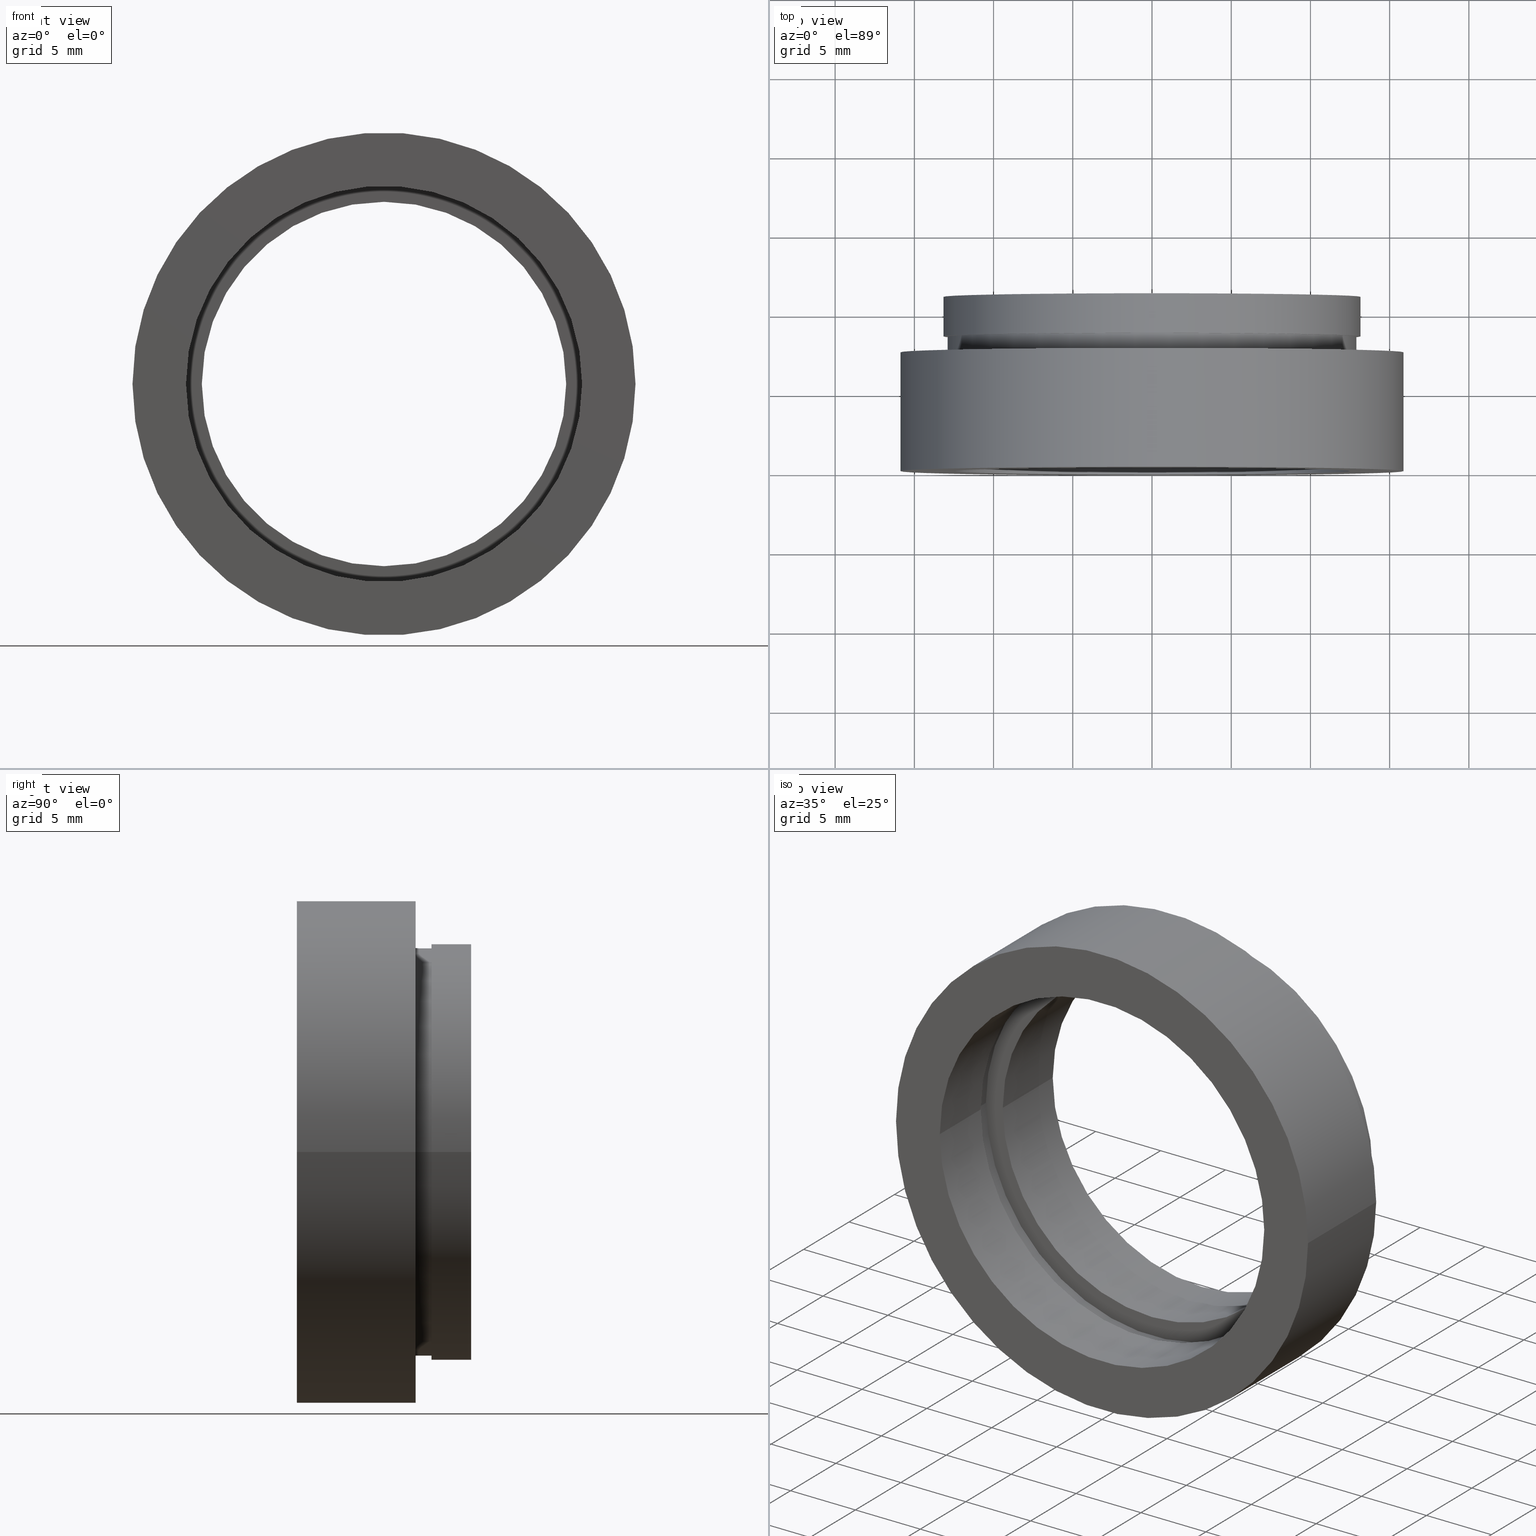
[diagram: canonical four-view strip — front | top / right | iso, engineering-drawing reading convention]
A machine part, canonical four-view strip (front | top / right | iso — engineering-drawing reading convention). The complete STEP part file that produces these views, byte-faithful:
ISO-10303-21;
HEADER;
FILE_DESCRIPTION (( 'STEP AP214' ),
    '1' );
FILE_NAME ('504116.STEP',
    '2019-10-10T01:22:41',
    ( '' ),
    ( '' ),
    'SwSTEP 2.0',
    'SolidWorks 2016',
    '' );
FILE_SCHEMA (( 'AUTOMOTIVE_DESIGN' ));
ENDSEC;

DATA;
#1 =( NAMED_UNIT ( * ) PLANE_ANGLE_UNIT ( ) SI_UNIT ( $, .RADIAN. ) );
#2 = LINE ( 'NONE', #86, #373 ) ;
#3 = EDGE_CURVE ( 'NONE', #23, #424, #531, .T. ) ;
#4 = FILL_AREA_STYLE ('',( #107 ) ) ;
#5 = EDGE_LOOP ( 'NONE', ( #394, #592, #94, #218 ) ) ;
#6 = DIRECTION ( 'NONE',  ( -1.224646799147351000E-016, 1.000000000000000000, -0.0000000000000000000 ) ) ;
#7 = EDGE_CURVE ( 'NONE', #517, #200, #553, .T. ) ;
#8 = FILL_AREA_STYLE_COLOUR ( '', #286 ) ;
#9 = AXIS2_PLACEMENT_3D ( 'NONE', #231, #101, #377 ) ;
#10 = CARTESIAN_POINT ( 'NONE',  ( 1.516849758822328100E-015, 4.499999999999999100, 0.0000000000000000000 ) ) ;
#11 = EDGE_LOOP ( 'NONE', ( #310, #124, #113, #156 ) ) ;
#12 = FACE_OUTER_BOUND ( 'NONE', #59, .T. ) ;
#13 = EDGE_LOOP ( 'NONE', ( #523, #241, #400, #397 ) ) ;
#14 = EDGE_CURVE ( 'NONE', #468, #275, #129, .T. ) ;
#15 = SURFACE_STYLE_FILL_AREA ( #313 ) ;
#16 = CARTESIAN_POINT ( 'NONE',  ( -12.89999999999999900, 7.499999999999996400, 0.0000000000000000000 ) ) ;
#17 = DIRECTION ( 'NONE',  ( -1.224646799147351000E-016, 1.000000000000000000, -0.0000000000000000000 ) ) ;
#18 = VECTOR ( 'NONE', #560, 1000.000000000000000 ) ;
#19 = CARTESIAN_POINT ( 'NONE',  ( 0.0000000000000000000, 16.88601823708207700, 0.0000000000000000000 ) ) ;
#20 = DIRECTION ( 'NONE',  ( -1.224646799147351000E-016, 1.000000000000000000, 0.0000000000000000000 ) ) ;
#21 = UNCERTAINTY_MEASURE_WITH_UNIT (LENGTH_MEASURE( 1.000000000000000100E-005 ), #212, 'distance_accuracy_value', 'NONE');
#22 = MECHANICAL_DESIGN_GEOMETRIC_PRESENTATION_REPRESENTATION (  '', ( #122 ), #108 ) ;
#23 = VERTEX_POINT ( 'NONE', #60 ) ;
#24 = CARTESIAN_POINT ( 'NONE',  ( 11.50000000000000200, 5.500000000000000000, 1.408343819019456600E-015 ) ) ;
#25 = DIRECTION ( 'NONE',  ( -1.000000000000000000, -1.508455196501571400E-016, 0.0000000000000000000 ) ) ;
#26 = CARTESIAN_POINT ( 'NONE',  ( 1.026991039163387700E-015, 8.499999999999998200, 0.0000000000000000000 ) ) ;
#27 = MECHANICAL_DESIGN_GEOMETRIC_PRESENTATION_REPRESENTATION (  '', ( #417 ), #309 ) ;
#28 = VECTOR ( 'NONE', #461, 1000.000000000000000 ) ;
#29 = CARTESIAN_POINT ( 'NONE',  ( 1.149455719078122700E-015, 7.499999999999998200, 0.0000000000000000000 ) ) ;
#30 = CARTESIAN_POINT ( 'NONE',  ( 1.516849758822328100E-015, 4.499999999999999100, 0.0000000000000000000 ) ) ;
#31 = SURFACE_STYLE_USAGE ( .BOTH. , #187 ) ;
#32 = EDGE_CURVE ( 'NONE', #53, #204, #568, .T. ) ;
#33 = UNCERTAINTY_MEASURE_WITH_UNIT (LENGTH_MEASURE( 1.000000000000000100E-005 ), #239, 'distance_accuracy_value', 'NONE');
#34 = ORIENTED_EDGE ( 'NONE', *, *, #253, .T. ) ;
#35 = FACE_BOUND ( 'NONE', #490, .T. ) ;
#36 = FILL_AREA_STYLE ('',( #91 ) ) ;
#37 = ADVANCED_FACE ( 'NONE', ( #63, #395 ), #155, .F. ) ;
#38 = CIRCLE ( 'NONE', #445, 15.87499999999999600 ) ;
#39 = CARTESIAN_POINT ( 'NONE',  ( 0.0000000000000000000, 16.88601823708207700, 0.0000000000000000000 ) ) ;
#40 = ORIENTED_EDGE ( 'NONE', *, *, #618, .T. ) ;
#41 = FACE_OUTER_BOUND ( 'NONE', #478, .T. ) ;
#42 = CARTESIAN_POINT ( 'NONE',  ( 1.149455719078122700E-015, 7.499999999999998200, 0.0000000000000000000 ) ) ;
#43 =( GEOMETRIC_REPRESENTATION_CONTEXT ( 3 ) GLOBAL_UNCERTAINTY_ASSIGNED_CONTEXT ( ( #208 ) ) GLOBAL_UNIT_ASSIGNED_CONTEXT ( ( #452, #496, #213 ) ) REPRESENTATION_CONTEXT ( 'NONE', 'WORKASPACE' ) );
#44 = DIRECTION ( 'NONE',  ( -1.000000000000000000, -1.355252715606880500E-016, 0.0000000000000000000 ) ) ;
#45 = ORIENTED_EDGE ( 'NONE', *, *, #144, .T. ) ;
#46 = EDGE_CURVE ( 'NONE', #254, #23, #177, .T. ) ;
#47 = CARTESIAN_POINT ( 'NONE',  ( 1.516849758822328100E-015, 4.499999999999999100, 0.0000000000000000000 ) ) ;
#48 = SURFACE_STYLE_FILL_AREA ( #255 ) ;
#49 = FACE_OUTER_BOUND ( 'NONE', #511, .T. ) ;
#50 =( GEOMETRIC_REPRESENTATION_CONTEXT ( 3 ) GLOBAL_UNCERTAINTY_ASSIGNED_CONTEXT ( ( #387 ) ) GLOBAL_UNIT_ASSIGNED_CONTEXT ( ( #322, #561, #328 ) ) REPRESENTATION_CONTEXT ( 'NONE', 'WORKASPACE' ) );
#51 = SURFACE_SIDE_STYLE ('',( #109 ) ) ;
#52 = CIRCLE ( 'NONE', #324, 12.80000000000000100 ) ;
#53 = VERTEX_POINT ( 'NONE', #396 ) ;
#54 = CYLINDRICAL_SURFACE ( 'NONE', #423, 15.87500000000000000 ) ;
#55 = CARTESIAN_POINT ( 'NONE',  ( 2.067940818438636500E-015, -3.469446951953614200E-015, 0.0000000000000000000 ) ) ;
#56 = VECTOR ( 'NONE', #183, 1000.000000000000000 ) ;
#57 = EDGE_CURVE ( 'NONE', #89, #517, #38, .T. ) ;
#58 = DIRECTION ( 'NONE',  ( 0.0000000000000000000, 0.0000000000000000000, 1.000000000000000000 ) ) ;
#59 = EDGE_LOOP ( 'NONE', ( #443, #154 ) ) ;
#60 = CARTESIAN_POINT ( 'NONE',  ( 12.80000000000000200, 4.500000000000000900, 1.567547902908612200E-015 ) ) ;
#61 = AXIS2_PLACEMENT_3D ( 'NONE', #621, #192, #292 ) ;
#62 = ORIENTED_EDGE ( 'NONE', *, *, #46, .T. ) ;
#63 = FACE_BOUND ( 'NONE', #345, .T. ) ;
#64 = CARTESIAN_POINT ( 'NONE',  ( 12.50000000000000200, 4.500000000000000000, 0.0000000000000000000 ) ) ;
#65 = CYLINDRICAL_SURFACE ( 'NONE', #506, 11.50000000000000000 ) ;
#66 = AXIS2_PLACEMENT_3D ( 'NONE', #125, #182, #25 ) ;
#67 = DIRECTION ( 'NONE',  ( -1.000000000000000000, -1.344746880602176000E-016, 0.0000000000000000000 ) ) ;
#68 = CARTESIAN_POINT ( 'NONE',  ( -15.87500000000000000, 16.88601823708207300, 0.0000000000000000000 ) ) ;
#69 = CYLINDRICAL_SURFACE ( 'NONE', #351, 12.80000000000000100 ) ;
#70 = EDGE_CURVE ( 'NONE', #142, #588, #145, .T. ) ;
#71 = CYLINDRICAL_SURFACE ( 'NONE', #247, 15.87500000000000000 ) ;
#72 = DIRECTION ( 'NONE',  ( -1.000000000000000000, -1.355252715606880500E-016, 0.0000000000000000000 ) ) ;
#73 =( NAMED_UNIT ( * ) PLANE_ANGLE_UNIT ( ) SI_UNIT ( $, .RADIAN. ) );
#74 = SURFACE_STYLE_USAGE ( .BOTH. , #362 ) ;
#75 = VERTEX_POINT ( 'NONE', #306 ) ;
#76 = MANIFOLD_SOLID_BREP ( '��ת1', #190 ) ;
#77 = DIRECTION ( 'NONE',  ( -1.000000000000000000, -1.224646799147350700E-016, 0.0000000000000000000 ) ) ;
#78 = PLANE ( 'NONE',  #578 ) ;
#79 = AXIS2_PLACEMENT_3D ( 'NONE', #19, #80, #164 ) ;
#80 = DIRECTION ( 'NONE',  ( -1.224646799147351000E-016, 1.000000000000000000, -0.0000000000000000000 ) ) ;
#81 = ORIENTED_EDGE ( 'NONE', *, *, #570, .F. ) ;
#82 = FACE_BOUND ( 'NONE', #495, .T. ) ;
#83 = DIRECTION ( 'NONE',  ( 1.000000000000000000, 1.224646799147351000E-016, 0.0000000000000000000 ) ) ;
#84 = EDGE_CURVE ( 'NONE', #104, #142, #481, .T. ) ;
#85 = ORIENTED_EDGE ( 'NONE', *, *, #291, .F. ) ;
#86 = CARTESIAN_POINT ( 'NONE',  ( 13.15999999999999800, 16.88601823708207700, 1.611635187677916700E-015 ) ) ;
#87 = DIRECTION ( 'NONE',  ( -1.000000000000000000, 0.0000000000000000000, 0.0000000000000000000 ) ) ;
#88 = VECTOR ( 'NONE', #308, 1000.000000000000000 ) ;
#89 = VERTEX_POINT ( 'NONE', #548 ) ;
#90 = SURFACE_STYLE_FILL_AREA ( #4 ) ;
#91 = FILL_AREA_STYLE_COLOUR ( '', #166 ) ;
#92 = CIRCLE ( 'NONE', #357, 12.50000000000000000 ) ;
#93 = STYLED_ITEM ( 'NONE', ( #262 ), #336 ) ;
#94 = ORIENTED_EDGE ( 'NONE', *, *, #521, .T. ) ;
#95 = ADVANCED_FACE ( 'NONE', ( #447, #412 ), #352, .F. ) ;
#96 = CARTESIAN_POINT ( 'NONE',  ( 0.0000000000000000000, 16.88601823708207700, 0.0000000000000000000 ) ) ;
#97 = PRESENTATION_LAYER_ASSIGNMENT (  '', '', ( #572 ) ) ;
#98 = CYLINDRICAL_SURFACE ( 'NONE', #448, 11.50000000000000000 ) ;
#99 = DIRECTION ( 'NONE',  ( -1.224646799147351000E-016, 1.000000000000000000, -0.0000000000000000000 ) ) ;
#100 = ORIENTED_EDGE ( 'NONE', *, *, #363, .F. ) ;
#101 = DIRECTION ( 'NONE',  ( -1.224646799147351000E-016, 1.000000000000000000, 0.0000000000000000000 ) ) ;
#102 = AXIS2_PLACEMENT_3D ( 'NONE', #64, #114, #441 ) ;
#103 = CARTESIAN_POINT ( 'NONE',  ( 1.026991039163387700E-015, 8.499999999999998200, 0.0000000000000000000 ) ) ;
#104 = VERTEX_POINT ( 'NONE', #24 ) ;
#105 = UNCERTAINTY_MEASURE_WITH_UNIT (LENGTH_MEASURE( 1.000000000000000100E-005 ), #244, 'distance_accuracy_value', 'NONE');
#106 = ORIENTED_EDGE ( 'NONE', *, *, #393, .T. ) ;
#107 = FILL_AREA_STYLE_COLOUR ( '', #173 ) ;
#108 =( GEOMETRIC_REPRESENTATION_CONTEXT ( 3 ) GLOBAL_UNCERTAINTY_ASSIGNED_CONTEXT ( ( #433 ) ) GLOBAL_UNIT_ASSIGNED_CONTEXT ( ( #419, #137, #375 ) ) REPRESENTATION_CONTEXT ( 'NONE', 'WORKASPACE' ) );
#109 = SURFACE_STYLE_FILL_AREA ( #620 ) ;
#110 = CIRCLE ( 'NONE', #563, 12.90000000000000000 ) ;
#111 = AXIS2_PLACEMENT_3D ( 'NONE', #584, #300, #67 ) ;
#112 = CARTESIAN_POINT ( 'NONE',  ( 0.0000000000000000000, 0.0000000000000000000, 0.0000000000000000000 ) ) ;
#113 = ORIENTED_EDGE ( 'NONE', *, *, #7, .T. ) ;
#114 = DIRECTION ( 'NONE',  ( 1.224646799147351000E-016, -1.000000000000000000, 0.0000000000000000000 ) ) ;
#115 = CARTESIAN_POINT ( 'NONE',  ( 12.80000000000000100, 16.88601823708207700, 1.567547902908612200E-015 ) ) ;
#116 = CARTESIAN_POINT ( 'NONE',  ( 2.067940818438636500E-015, -3.469446951953614200E-015, 0.0000000000000000000 ) ) ;
#117 = ORIENTED_EDGE ( 'NONE', *, *, #127, .F. ) ;
#118 = CARTESIAN_POINT ( 'NONE',  ( 7.208293393765502500E-016, 10.99999999999999600, 0.0000000000000000000 ) ) ;
#119 = EDGE_CURVE ( 'NONE', #132, #275, #349, .T. ) ;
#120 = CARTESIAN_POINT ( 'NONE',  ( -12.79999999999999900, 4.499999999999997300, 0.0000000000000000000 ) ) ;
#121 = CIRCLE ( 'NONE', #401, 12.80000000000000100 ) ;
#122 = STYLED_ITEM ( 'NONE', ( #598 ), #418 ) ;
#123 = PLANE ( 'NONE',  #609 ) ;
#124 = ORIENTED_EDGE ( 'NONE', *, *, #57, .T. ) ;
#125 = CARTESIAN_POINT ( 'NONE',  ( 1.394385078907593000E-015, 5.499999999999998200, 0.0000000000000000000 ) ) ;
#126 = ORIENTED_EDGE ( 'NONE', *, *, #119, .F. ) ;
#127 = EDGE_CURVE ( 'NONE', #508, #424, #277, .T. ) ;
#128 = CARTESIAN_POINT ( 'NONE',  ( 13.16000000000000200, 10.99999999999999800, 1.611635187677917100E-015 ) ) ;
#129 = CIRCLE ( 'NONE', #111, 12.90000000000000000 ) ;
#130 = CIRCLE ( 'NONE', #582, 15.87500000000000000 ) ;
#131 = SURFACE_STYLE_USAGE ( .BOTH. , #369 ) ;
#132 = VERTEX_POINT ( 'NONE', #16 ) ;
#133 = DIRECTION ( 'NONE',  ( -1.000000000000000000, -1.318178933113075500E-016, 0.0000000000000000000 ) ) ;
#134 = FACE_OUTER_BOUND ( 'NONE', #5, .T. ) ;
#135 = EDGE_LOOP ( 'NONE', ( #370, #45, #600, #100 ) ) ;
#136 = ADVANCED_FACE ( 'NONE', ( #503 ), #486, .T. ) ;
#137 =( NAMED_UNIT ( * ) PLANE_ANGLE_UNIT ( ) SI_UNIT ( $, .RADIAN. ) );
#138 = AXIS2_PLACEMENT_3D ( 'NONE', #236, #571, #383 ) ;
#139 = CARTESIAN_POINT ( 'NONE',  ( -13.15999999999999800, 16.88601823708207700, 0.0000000000000000000 ) ) ;
#140 = ADVANCED_FACE ( 'NONE', ( #589 ), #358, .T. ) ;
#141 = PRESENTATION_LAYER_ASSIGNMENT (  '', '', ( #93 ) ) ;
#142 = VERTEX_POINT ( 'NONE', #318 ) ;
#143 = DIRECTION ( 'NONE',  ( -1.224646799147351000E-016, 1.000000000000000000, -0.0000000000000000000 ) ) ;
#144 = EDGE_CURVE ( 'NONE', #75, #320, #2, .T. ) ;
#145 = CIRCLE ( 'NONE', #243, 11.50000000000000200 ) ;
#146 = CARTESIAN_POINT ( 'NONE',  ( -12.49999999999999800, 4.499999999999997300, 0.0000000000000000000 ) ) ;
#147 = SURFACE_STYLE_USAGE ( .BOTH. , #386 ) ;
#148 = STYLED_ITEM ( 'NONE', ( #610 ), #450 ) ;
#149 = ORIENTED_EDGE ( 'NONE', *, *, #363, .T. ) ;
#150 = CYLINDRICAL_SURFACE ( 'NONE', #532, 12.80000000000000100 ) ;
#151 = CARTESIAN_POINT ( 'NONE',  ( -12.49999999999999800, -1.530808498934189000E-015, 0.0000000000000000000 ) ) ;
#152 = ORIENTED_EDGE ( 'NONE', *, *, #14, .F. ) ;
#153 = EDGE_CURVE ( 'NONE', #526, #204, #245, .T. ) ;
#154 = ORIENTED_EDGE ( 'NONE', *, *, #555, .T. ) ;
#155 = PLANE ( 'NONE',  #102 ) ;
#156 = ORIENTED_EDGE ( 'NONE', *, *, #618, .F. ) ;
#157 = AXIS2_PLACEMENT_3D ( 'NONE', #586, #203, #537 ) ;
#158 = ORIENTED_EDGE ( 'NONE', *, *, #153, .F. ) ;
#159 = AXIS2_PLACEMENT_3D ( 'NONE', #258, #317, #360 ) ;
#160 = SURFACE_SIDE_STYLE ('',( #90 ) ) ;
#161 = CYLINDRICAL_SURFACE ( 'NONE', #348, 12.90000000000000000 ) ;
#162 = ORIENTED_EDGE ( 'NONE', *, *, #119, .T. ) ;
#163 = VECTOR ( 'NONE', #206, 1000.000000000000000 ) ;
#164 = DIRECTION ( 'NONE',  ( -1.000000000000000000, 0.0000000000000000000, 0.0000000000000000000 ) ) ;
#165 = EDGE_CURVE ( 'NONE', #104, #340, #611, .T. ) ;
#166 = COLOUR_RGB ( '',1.000000000000000000, 1.000000000000000000, 1.000000000000000000 ) ;
#167 = MECHANICAL_DESIGN_GEOMETRIC_PRESENTATION_REPRESENTATION (  '', ( #263 ), #50 ) ;
#168 = DIRECTION ( 'NONE',  ( -1.000000000000000000, -1.508455196501571200E-016, 0.0000000000000000000 ) ) ;
#169 = ORIENTED_EDGE ( 'NONE', *, *, #385, .F. ) ;
#170 = CARTESIAN_POINT ( 'NONE',  ( -12.90000000000000000, 16.88601823708207700, 0.0000000000000000000 ) ) ;
#171 = FILL_AREA_STYLE ('',( #267 ) ) ;
#172 = AXIS2_PLACEMENT_3D ( 'NONE', #223, #458, #268 ) ;
#173 = COLOUR_RGB ( '',1.000000000000000000, 1.000000000000000000, 1.000000000000000000 ) ;
#174 = EDGE_LOOP ( 'NONE', ( #391, #270, #162, #152 ) ) ;
#175 = DIRECTION ( 'NONE',  ( -1.000000000000000000, -1.224646799147351000E-016, 0.0000000000000000000 ) ) ;
#176 = DIRECTION ( 'NONE',  ( -1.224646799147351000E-016, 1.000000000000000000, -0.0000000000000000000 ) ) ;
#177 = CIRCLE ( 'NONE', #280, 12.80000000000000100 ) ;
#178 = CARTESIAN_POINT ( 'NONE',  ( 12.50000000000000200, 4.500000000000000900, 1.530808498934191500E-015 ) ) ;
#179 = EDGE_CURVE ( 'NONE', #340, #104, #303, .T. ) ;
#180 = DIRECTION ( 'NONE',  ( -1.000000000000000000, -1.387778780781445700E-016, 0.0000000000000000000 ) ) ;
#181 = DIRECTION ( 'NONE',  ( -1.000000000000000000, -1.224646799147351200E-016, 0.0000000000000000000 ) ) ;
#182 = DIRECTION ( 'NONE',  ( -1.224646799147351000E-016, 1.000000000000000000, -0.0000000000000000000 ) ) ;
#183 = DIRECTION ( 'NONE',  ( -1.224646799147351000E-016, 1.000000000000000000, -0.0000000000000000000 ) ) ;
#184 = ORIENTED_EDGE ( 'NONE', *, *, #385, .T. ) ;
#185 = DIRECTION ( 'NONE',  ( -1.224646799147351000E-016, 1.000000000000000000, -0.0000000000000000000 ) ) ;
#186 = PRESENTATION_STYLE_ASSIGNMENT (( #147 ) ) ;
#187 = SURFACE_SIDE_STYLE ('',( #577 ) ) ;
#188 = VERTEX_POINT ( 'NONE', #558 ) ;
#189 = ORIENTED_EDGE ( 'NONE', *, *, #165, .T. ) ;
#190 = CLOSED_SHELL ( 'NONE', ( #607, #140, #136, #379, #274, #418, #330, #566, #37, #326, #95, #336, #278, #615, #512, #235, #463, #421 ) ) ;
#191 = AXIS2_PLACEMENT_3D ( 'NONE', #407, #304, #366 ) ;
#192 = DIRECTION ( 'NONE',  ( 1.224646799147351000E-016, -1.000000000000000000, 0.0000000000000000000 ) ) ;
#193 = CIRCLE ( 'NONE', #288, 12.50000000000000000 ) ;
#194 = ORIENTED_EDGE ( 'NONE', *, *, #70, .T. ) ;
#195 = PRESENTATION_STYLE_ASSIGNMENT (( #380 ) ) ;
#196 =( NAMED_UNIT ( * ) SI_UNIT ( $, .STERADIAN. ) SOLID_ANGLE_UNIT ( ) );
#197 = SURFACE_STYLE_FILL_AREA ( #431 ) ;
#198 = SURFACE_STYLE_USAGE ( .BOTH. , #160 ) ;
#199 = AXIS2_PLACEMENT_3D ( 'NONE', #39, #513, #515 ) ;
#200 = VERTEX_POINT ( 'NONE', #504 ) ;
#201 =( NAMED_UNIT ( * ) SI_UNIT ( $, .STERADIAN. ) SOLID_ANGLE_UNIT ( ) );
#202 = MECHANICAL_DESIGN_GEOMETRIC_PRESENTATION_REPRESENTATION (  '', ( #93 ), #43 ) ;
#203 = DIRECTION ( 'NONE',  ( -1.224646799147351000E-016, 1.000000000000000000, -0.0000000000000000000 ) ) ;
#204 = VERTEX_POINT ( 'NONE', #178 ) ;
#205 = ORIENTED_EDGE ( 'NONE', *, *, #3, .T. ) ;
#206 = DIRECTION ( 'NONE',  ( -1.224646799147351000E-016, 1.000000000000000000, -0.0000000000000000000 ) ) ;
#207 = VECTOR ( 'NONE', #392, 1000.000000000000000 ) ;
#208 = UNCERTAINTY_MEASURE_WITH_UNIT (LENGTH_MEASURE( 1.000000000000000100E-005 ), #452, 'distance_accuracy_value', 'NONE');
#209 = DIRECTION ( 'NONE',  ( -1.224646799147351000E-016, 1.000000000000000000, -0.0000000000000000000 ) ) ;
#210 = ORIENTED_EDGE ( 'NONE', *, *, #314, .T. ) ;
#211 = STYLED_ITEM ( 'NONE', ( #305 ), #136 ) ;
#212 =( LENGTH_UNIT ( ) NAMED_UNIT ( * ) SI_UNIT ( .MILLI., .METRE. ) );
#213 =( NAMED_UNIT ( * ) SI_UNIT ( $, .STERADIAN. ) SOLID_ANGLE_UNIT ( ) );
#214 = ORIENTED_EDGE ( 'NONE', *, *, #570, .T. ) ;
#215 = LINE ( 'NONE', #271, #56 ) ;
#216 = CARTESIAN_POINT ( 'NONE',  ( 1.394385078907593000E-015, 5.499999999999998200, 0.0000000000000000000 ) ) ;
#217 = CARTESIAN_POINT ( 'NONE',  ( 11.50000000000000200, 10.99999999999999800, 0.0000000000000000000 ) ) ;
#218 = ORIENTED_EDGE ( 'NONE', *, *, #127, .T. ) ;
#219 = DIRECTION ( 'NONE',  ( -1.224646799147351000E-016, 1.000000000000000000, -0.0000000000000000000 ) ) ;
#220 = DIRECTION ( 'NONE',  ( -1.224646799147351000E-016, 1.000000000000000000, -0.0000000000000000000 ) ) ;
#221 = VECTOR ( 'NONE', #460, 1000.000000000000000 ) ;
#222 = EDGE_CURVE ( 'NONE', #340, #588, #444, .T. ) ;
#223 = CARTESIAN_POINT ( 'NONE',  ( 1.394385078907593000E-015, 5.499999999999998200, 0.0000000000000000000 ) ) ;
#224 = CARTESIAN_POINT ( 'NONE',  ( 15.87500000000000000, 16.88601823708208000, 1.944126793646423200E-015 ) ) ;
#225 = VECTOR ( 'NONE', #590, 1000.000000000000000 ) ;
#226 = FILL_AREA_STYLE_COLOUR ( '', #554 ) ;
#227 = ORIENTED_EDGE ( 'NONE', *, *, #333, .T. ) ;
#228 = CARTESIAN_POINT ( 'NONE',  ( -11.49999999999999800, 5.499999999999996400, 0.0000000000000000000 ) ) ;
#229 =( GEOMETRIC_REPRESENTATION_CONTEXT ( 3 ) GLOBAL_UNCERTAINTY_ASSIGNED_CONTEXT ( ( #361 ) ) GLOBAL_UNIT_ASSIGNED_CONTEXT ( ( #389, #579, #533 ) ) REPRESENTATION_CONTEXT ( 'NONE', 'WORKASPACE' ) );
#230 = CARTESIAN_POINT ( 'NONE',  ( 12.90000000000000200, 7.500000000000000000, 1.579794370900085700E-015 ) ) ;
#231 = CARTESIAN_POINT ( 'NONE',  ( 13.16000000000000000, 8.500000000000000000, 0.0000000000000000000 ) ) ;
#232 =( GEOMETRIC_REPRESENTATION_CONTEXT ( 3 ) GLOBAL_UNCERTAINTY_ASSIGNED_CONTEXT ( ( #21 ) ) GLOBAL_UNIT_ASSIGNED_CONTEXT ( ( #212, #73, #403 ) ) REPRESENTATION_CONTEXT ( 'NONE', 'WORKASPACE' ) );
#233 = EDGE_LOOP ( 'NONE', ( #353, #565 ) ) ;
#234 = CARTESIAN_POINT ( 'NONE',  ( 0.0000000000000000000, 16.88601823708207700, 0.0000000000000000000 ) ) ;
#235 = ADVANCED_FACE ( 'NONE', ( #477 ), #161, .T. ) ;
#236 = CARTESIAN_POINT ( 'NONE',  ( 7.208293393765502500E-016, 10.99999999999999600, 0.0000000000000000000 ) ) ;
#237 = CARTESIAN_POINT ( 'NONE',  ( -15.87499999999999300, -5.413573745600033100E-015, 0.0000000000000000000 ) ) ;
#238 = PRESENTATION_STYLE_ASSIGNMENT (( #541 ) ) ;
#239 =( LENGTH_UNIT ( ) NAMED_UNIT ( * ) SI_UNIT ( .MILLI., .METRE. ) );
#240 = MECHANICAL_DESIGN_GEOMETRIC_PRESENTATION_REPRESENTATION (  '', ( #572 ), #501 ) ;
#241 = ORIENTED_EDGE ( 'NONE', *, *, #253, .F. ) ;
#242 = APPLICATION_CONTEXT ( 'automotive_design' ) ;
#243 = AXIS2_PLACEMENT_3D ( 'NONE', #118, #455, #456 ) ;
#244 =( LENGTH_UNIT ( ) NAMED_UNIT ( * ) SI_UNIT ( .MILLI., .METRE. ) );
#245 = CIRCLE ( 'NONE', #469, 12.50000000000000000 ) ;
#246 = CYLINDRICAL_SURFACE ( 'NONE', #199, 12.50000000000000000 ) ;
#247 = AXIS2_PLACEMENT_3D ( 'NONE', #425, #608, #464 ) ;
#248 = EDGE_LOOP ( 'NONE', ( #622, #293 ) ) ;
#249 = PRODUCT_CONTEXT ( 'NONE', #302, 'mechanical' ) ;
#250 = EDGE_CURVE ( 'NONE', #424, #508, #52, .T. ) ;
#251 = FACE_OUTER_BOUND ( 'NONE', #339, .T. ) ;
#252 =( NAMED_UNIT ( * ) SI_UNIT ( $, .STERADIAN. ) SOLID_ANGLE_UNIT ( ) );
#253 = EDGE_CURVE ( 'NONE', #573, #53, #193, .T. ) ;
#254 = VERTEX_POINT ( 'NONE', #120 ) ;
#255 = FILL_AREA_STYLE ('',( #8 ) ) ;
#256 = CIRCLE ( 'NONE', #480, 11.50000000000000200 ) ;
#257 = ORIENTED_EDGE ( 'NONE', *, *, #57, .F. ) ;
#258 = CARTESIAN_POINT ( 'NONE',  ( 2.067940818438636100E-015, 0.0000000000000000000, 0.0000000000000000000 ) ) ;
#259 = DIRECTION ( 'NONE',  ( -1.224646799147351000E-016, 1.000000000000000000, -0.0000000000000000000 ) ) ;
#260 = CARTESIAN_POINT ( 'NONE',  ( 1.394385078907593000E-015, 5.499999999999998200, 0.0000000000000000000 ) ) ;
#261 = ORIENTED_EDGE ( 'NONE', *, *, #321, .F. ) ;
#262 = PRESENTATION_STYLE_ASSIGNMENT (( #74 ) ) ;
#263 = STYLED_ITEM ( 'NONE', ( #332 ), #379 ) ;
#264 = DIRECTION ( 'NONE',  ( -1.224646799147351000E-016, 1.000000000000000000, -0.0000000000000000000 ) ) ;
#265 = ORIENTED_EDGE ( 'NONE', *, *, #144, .F. ) ;
#266 = DIRECTION ( 'NONE',  ( -1.000000000000000000, 0.0000000000000000000, 0.0000000000000000000 ) ) ;
#267 = FILL_AREA_STYLE_COLOUR ( '', #475 ) ;
#268 = DIRECTION ( 'NONE',  ( -1.000000000000000000, -1.508455196501571400E-016, 0.0000000000000000000 ) ) ;
#269 = DIRECTION ( 'NONE',  ( -1.000000000000000000, -1.344746880602176000E-016, 0.0000000000000000000 ) ) ;
#270 = ORIENTED_EDGE ( 'NONE', *, *, #291, .T. ) ;
#271 = CARTESIAN_POINT ( 'NONE',  ( -12.50000000000000000, 16.88601823708207700, 0.0000000000000000000 ) ) ;
#272 = PRODUCT_DEFINITION_SHAPE ( 'NONE', 'NONE',  #273 ) ;
#273 = PRODUCT_DEFINITION ( 'δ֪', '', #410, #462 ) ;
#274 = ADVANCED_FACE ( 'NONE', ( #540 ), #150, .F. ) ;
#275 = VERTEX_POINT ( 'NONE', #365 ) ;
#276 = DIRECTION ( 'NONE',  ( -1.224646799147351000E-016, 1.000000000000000000, -0.0000000000000000000 ) ) ;
#277 = CIRCLE ( 'NONE', #437, 12.80000000000000100 ) ;
#278 = ADVANCED_FACE ( 'NONE', ( #35, #12 ), #123, .F. ) ;
#279 = CARTESIAN_POINT ( 'NONE',  ( 1.026991039163387700E-015, 8.499999999999998200, 0.0000000000000000000 ) ) ;
#280 = AXIS2_PLACEMENT_3D ( 'NONE', #10, #259, #72 ) ;
#281 = CARTESIAN_POINT ( 'NONE',  ( 12.80000000000000200, 5.500000000000000000, 1.567547902908612200E-015 ) ) ;
#282 = ORIENTED_EDGE ( 'NONE', *, *, #222, .T. ) ;
#283 =( GEOMETRIC_REPRESENTATION_CONTEXT ( 3 ) GLOBAL_UNCERTAINTY_ASSIGNED_CONTEXT ( ( #514 ) ) GLOBAL_UNIT_ASSIGNED_CONTEXT ( ( #581, #294, #442 ) ) REPRESENTATION_CONTEXT ( 'NONE', 'WORKASPACE' ) );
#284 = EDGE_LOOP ( 'NONE', ( #62, #520 ) ) ;
#285 = DIRECTION ( 'NONE',  ( -1.224646799147351000E-016, 1.000000000000000000, -0.0000000000000000000 ) ) ;
#286 = COLOUR_RGB ( '',1.000000000000000000, 1.000000000000000000, 1.000000000000000000 ) ;
#287 = CARTESIAN_POINT ( 'NONE',  ( 0.0000000000000000000, 16.88601823708207700, 0.0000000000000000000 ) ) ;
#288 = AXIS2_PLACEMENT_3D ( 'NONE', #404, #552, #181 ) ;
#289 = DIRECTION ( 'NONE',  ( -1.224646799147351000E-016, 1.000000000000000000, -0.0000000000000000000 ) ) ;
#290 = FACE_BOUND ( 'NONE', #451, .T. ) ;
#291 = EDGE_CURVE ( 'NONE', #436, #132, #528, .T. ) ;
#292 = DIRECTION ( 'NONE',  ( 1.000000000000000000, 1.224646799147351000E-016, 0.0000000000000000000 ) ) ;
#293 = ORIENTED_EDGE ( 'NONE', *, *, #14, .T. ) ;
#294 =( NAMED_UNIT ( * ) PLANE_ANGLE_UNIT ( ) SI_UNIT ( $, .RADIAN. ) );
#295 = MECHANICAL_DESIGN_GEOMETRIC_PRESENTATION_REPRESENTATION (  '', ( #148 ), #229 ) ;
#296 = VERTEX_POINT ( 'NONE', #596 ) ;
#297 = PRODUCT ( '504116', '504116', '', ( #249 ) ) ;
#298 = ORIENTED_EDGE ( 'NONE', *, *, #179, .F. ) ;
#299 = EDGE_CURVE ( 'NONE', #53, #573, #346, .T. ) ;
#300 = DIRECTION ( 'NONE',  ( -1.224646799147351000E-016, 1.000000000000000000, -0.0000000000000000000 ) ) ;
#301 = VECTOR ( 'NONE', #488, 1000.000000000000000 ) ;
#302 = APPLICATION_CONTEXT ( 'automotive_design' ) ;
#303 = CIRCLE ( 'NONE', #172, 11.50000000000000000 ) ;
#304 = DIRECTION ( 'NONE',  ( -1.224646799147351000E-016, 1.000000000000000000, -0.0000000000000000000 ) ) ;
#305 = PRESENTATION_STYLE_ASSIGNMENT (( #593 ) ) ;
#306 = CARTESIAN_POINT ( 'NONE',  ( 13.16000000000000200, 8.500000000000000000, 1.611635187677917100E-015 ) ) ;
#307 =( LENGTH_UNIT ( ) NAMED_UNIT ( * ) SI_UNIT ( .MILLI., .METRE. ) );
#308 = DIRECTION ( 'NONE',  ( -1.224646799147351000E-016, 1.000000000000000000, -0.0000000000000000000 ) ) ;
#309 =( GEOMETRIC_REPRESENTATION_CONTEXT ( 3 ) GLOBAL_UNCERTAINTY_ASSIGNED_CONTEXT ( ( #470 ) ) GLOBAL_UNIT_ASSIGNED_CONTEXT ( ( #307, #398, #252 ) ) REPRESENTATION_CONTEXT ( 'NONE', 'WORKASPACE' ) );
#310 = ORIENTED_EDGE ( 'NONE', *, *, #333, .F. ) ;
#311 = CARTESIAN_POINT ( 'NONE',  ( 15.87500000000000000, -5.055566104016494100E-031, 0.0000000000000000000 ) ) ;
#312 = VERTEX_POINT ( 'NONE', #594 ) ;
#313 = FILL_AREA_STYLE ('',( #350 ) ) ;
#314 = EDGE_CURVE ( 'NONE', #75, #188, #399, .T. ) ;
#315 = PRODUCT_RELATED_PRODUCT_CATEGORY ( 'part', '', ( #297 ) ) ;
#316 = DIRECTION ( 'NONE',  ( -1.000000000000000000, -1.355252715606880500E-016, 0.0000000000000000000 ) ) ;
#317 = DIRECTION ( 'NONE',  ( -1.224646799147351000E-016, 1.000000000000000000, -0.0000000000000000000 ) ) ;
#318 = CARTESIAN_POINT ( 'NONE',  ( 11.50000000000000200, 10.99999999999999800, 1.408343819019456600E-015 ) ) ;
#319 = DIRECTION ( 'NONE',  ( -1.000000000000000000, -1.318178933113075500E-016, 0.0000000000000000000 ) ) ;
#320 = VERTEX_POINT ( 'NONE', #128 ) ;
#321 = EDGE_CURVE ( 'NONE', #588, #142, #256, .T. ) ;
#322 =( LENGTH_UNIT ( ) NAMED_UNIT ( * ) SI_UNIT ( .MILLI., .METRE. ) );
#323 = ORIENTED_EDGE ( 'NONE', *, *, #7, .F. ) ;
#324 = AXIS2_PLACEMENT_3D ( 'NONE', #216, #551, #316 ) ;
#325 = PLANE ( 'NONE',  #61 ) ;
#326 = ADVANCED_FACE ( 'NONE', ( #134 ), #69, .F. ) ;
#327 = EDGE_LOOP ( 'NONE', ( #426, #205, #485, #492 ) ) ;
#328 =( NAMED_UNIT ( * ) SI_UNIT ( $, .STERADIAN. ) SOLID_ANGLE_UNIT ( ) );
#329 = AXIS2_PLACEMENT_3D ( 'NONE', #42, #471, #269 ) ;
#330 = ADVANCED_FACE ( 'NONE', ( #559, #290 ), #78, .F. ) ;
#331 = COLOUR_RGB ( '',1.000000000000000000, 1.000000000000000000, 1.000000000000000000 ) ;
#332 = PRESENTATION_STYLE_ASSIGNMENT (( #131 ) ) ;
#333 = EDGE_CURVE ( 'NONE', #89, #312, #602, .T. ) ;
#334 = PLANE ( 'NONE',  #9 ) ;
#335 = ORIENTED_EDGE ( 'NONE', *, *, #84, .T. ) ;
#336 = ADVANCED_FACE ( 'NONE', ( #41 ), #98, .F. ) ;
#337 = EDGE_CURVE ( 'NONE', #573, #526, #215, .T. ) ;
#338 = DIRECTION ( 'NONE',  ( -1.224646799147351000E-016, 1.000000000000000000, -0.0000000000000000000 ) ) ;
#339 = EDGE_LOOP ( 'NONE', ( #343, #227, #81, #323 ) ) ;
#340 = VERTEX_POINT ( 'NONE', #228 ) ;
#341 = AXIS2_PLACEMENT_3D ( 'NONE', #449, #498, #175 ) ;
#342 = CYLINDRICAL_SURFACE ( 'NONE', #591, 12.50000000000000000 ) ;
#343 = ORIENTED_EDGE ( 'NONE', *, *, #601, .T. ) ;
#344 = VECTOR ( 'NONE', #525, 1000.000000000000000 ) ;
#345 = EDGE_LOOP ( 'NONE', ( #158, #169 ) ) ;
#346 = CIRCLE ( 'NONE', #159, 12.50000000000000000 ) ;
#347 = EDGE_LOOP ( 'NONE', ( #409, #189 ) ) ;
#348 = AXIS2_PLACEMENT_3D ( 'NONE', #414, #219, #266 ) ;
#349 = LINE ( 'NONE', #170, #225 ) ;
#350 = FILL_AREA_STYLE_COLOUR ( '', #381 ) ;
#351 = AXIS2_PLACEMENT_3D ( 'NONE', #603, #367, #87 ) ;
#352 = PLANE ( 'NONE',  #341 ) ;
#353 = ORIENTED_EDGE ( 'NONE', *, *, #372, .F. ) ;
#354 = DIRECTION ( 'NONE',  ( -1.000000000000000000, 0.0000000000000000000, 0.0000000000000000000 ) ) ;
#355 = EDGE_CURVE ( 'NONE', #296, #320, #402, .T. ) ;
#356 = CYLINDRICAL_SURFACE ( 'NONE', #453, 13.15999999999999800 ) ;
#357 = AXIS2_PLACEMENT_3D ( 'NONE', #612, #276, #368 ) ;
#358 = CYLINDRICAL_SURFACE ( 'NONE', #191, 12.90000000000000000 ) ;
#359 = SURFACE_SIDE_STYLE ('',( #48 ) ) ;
#360 = DIRECTION ( 'NONE',  ( -1.000000000000000000, -1.224646799147351200E-016, 0.0000000000000000000 ) ) ;
#361 = UNCERTAINTY_MEASURE_WITH_UNIT (LENGTH_MEASURE( 1.000000000000000100E-005 ), #389, 'distance_accuracy_value', 'NONE');
#362 = SURFACE_SIDE_STYLE ('',( #376 ) ) ;
#363 = EDGE_CURVE ( 'NONE', #188, #296, #583, .T. ) ;
#364 = ORIENTED_EDGE ( 'NONE', *, *, #299, .T. ) ;
#365 = CARTESIAN_POINT ( 'NONE',  ( -12.89999999999999900, 8.499999999999996400, 0.0000000000000000000 ) ) ;
#366 = DIRECTION ( 'NONE',  ( -1.000000000000000000, 0.0000000000000000000, 0.0000000000000000000 ) ) ;
#367 = DIRECTION ( 'NONE',  ( -1.224646799147351000E-016, 1.000000000000000000, -0.0000000000000000000 ) ) ;
#368 = DIRECTION ( 'NONE',  ( -1.000000000000000000, -1.387778780781445700E-016, 0.0000000000000000000 ) ) ;
#369 = SURFACE_SIDE_STYLE ('',( #489 ) ) ;
#370 = ORIENTED_EDGE ( 'NONE', *, *, #372, .T. ) ;
#371 = CARTESIAN_POINT ( 'NONE',  ( 12.90000000000000200, 8.500000000000000000, 1.579794370900085700E-015 ) ) ;
#372 = EDGE_CURVE ( 'NONE', #188, #75, #543, .T. ) ;
#373 = VECTOR ( 'NONE', #556, 1000.000000000000000 ) ;
#374 = FACE_OUTER_BOUND ( 'NONE', #13, .T. ) ;
#375 =( NAMED_UNIT ( * ) SI_UNIT ( $, .STERADIAN. ) SOLID_ANGLE_UNIT ( ) );
#376 = SURFACE_STYLE_FILL_AREA ( #171 ) ;
#377 = DIRECTION ( 'NONE',  ( -1.000000000000000000, -1.224646799147351000E-016, 0.0000000000000000000 ) ) ;
#378 = CARTESIAN_POINT ( 'NONE',  ( 1.149455719078122700E-015, 7.499999999999998200, 0.0000000000000000000 ) ) ;
#379 = ADVANCED_FACE ( 'NONE', ( #49 ), #65, .F. ) ;
#380 = SURFACE_STYLE_USAGE ( .BOTH. , #51 ) ;
#381 = COLOUR_RGB ( '',1.000000000000000000, 1.000000000000000000, 1.000000000000000000 ) ;
#382 = AXIS2_PLACEMENT_3D ( 'NONE', #26, #411, #319 ) ;
#383 = DIRECTION ( 'NONE',  ( -1.000000000000000000, -1.318178933113075200E-016, 0.0000000000000000000 ) ) ;
#384 = ORIENTED_EDGE ( 'NONE', *, *, #429, .T. ) ;
#385 = EDGE_CURVE ( 'NONE', #204, #526, #92, .T. ) ;
#386 = SURFACE_SIDE_STYLE ('',( #197 ) ) ;
#387 = UNCERTAINTY_MEASURE_WITH_UNIT (LENGTH_MEASURE( 1.000000000000000100E-005 ), #322, 'distance_accuracy_value', 'NONE');
#388 = ORIENTED_EDGE ( 'NONE', *, *, #337, .F. ) ;
#389 =( LENGTH_UNIT ( ) NAMED_UNIT ( * ) SI_UNIT ( .MILLI., .METRE. ) );
#390 = MECHANICAL_DESIGN_GEOMETRIC_PRESENTATION_REPRESENTATION (  '', ( #516 ), #283 ) ;
#391 = ORIENTED_EDGE ( 'NONE', *, *, #393, .F. ) ;
#392 = DIRECTION ( 'NONE',  ( -1.224646799147351000E-016, 1.000000000000000000, -0.0000000000000000000 ) ) ;
#393 = EDGE_CURVE ( 'NONE', #436, #468, #420, .T. ) ;
#394 = ORIENTED_EDGE ( 'NONE', *, *, #3, .F. ) ;
#395 = FACE_OUTER_BOUND ( 'NONE', #284, .T. ) ;
#396 = CARTESIAN_POINT ( 'NONE',  ( 12.50000000000000200, 1.530808498934189000E-015, 1.530808498934191500E-015 ) ) ;
#397 = ORIENTED_EDGE ( 'NONE', *, *, #153, .T. ) ;
#398 =( NAMED_UNIT ( * ) PLANE_ANGLE_UNIT ( ) SI_UNIT ( $, .RADIAN. ) );
#399 = CIRCLE ( 'NONE', #382, 13.15999999999999800 ) ;
#400 = ORIENTED_EDGE ( 'NONE', *, *, #337, .T. ) ;
#401 = AXIS2_PLACEMENT_3D ( 'NONE', #47, #476, #44 ) ;
#402 = CIRCLE ( 'NONE', #483, 13.16000000000000000 ) ;
#403 =( NAMED_UNIT ( * ) SI_UNIT ( $, .STERADIAN. ) SOLID_ANGLE_UNIT ( ) );
#404 = CARTESIAN_POINT ( 'NONE',  ( 2.067940818438636100E-015, 0.0000000000000000000, 0.0000000000000000000 ) ) ;
#405 = PRESENTATION_LAYER_ASSIGNMENT (  '', '', ( #417 ) ) ;
#406 = DIRECTION ( 'NONE',  ( -1.000000000000000000, -1.224646799147351000E-016, 0.0000000000000000000 ) ) ;
#407 = CARTESIAN_POINT ( 'NONE',  ( 0.0000000000000000000, 16.88601823708207700, 0.0000000000000000000 ) ) ;
#408 = DIRECTION ( 'NONE',  ( 1.224646799147351000E-016, -1.000000000000000000, 0.0000000000000000000 ) ) ;
#409 = ORIENTED_EDGE ( 'NONE', *, *, #179, .T. ) ;
#410 = PRODUCT_DEFINITION_FORMATION_WITH_SPECIFIED_SOURCE ( '�κ�', '', #297, .NOT_KNOWN. ) ;
#411 = DIRECTION ( 'NONE',  ( -1.224646799147351000E-016, 1.000000000000000000, -0.0000000000000000000 ) ) ;
#412 = FACE_BOUND ( 'NONE', #347, .T. ) ;
#413 = CIRCLE ( 'NONE', #138, 13.16000000000000000 ) ;
#414 = CARTESIAN_POINT ( 'NONE',  ( 0.0000000000000000000, 16.88601823708207700, 0.0000000000000000000 ) ) ;
#415 = CARTESIAN_POINT ( 'NONE',  ( 12.90000000000000000, 16.88601823708207700, 1.579794370900085700E-015 ) ) ;
#416 = DIRECTION ( 'NONE',  ( -1.224646799147351000E-016, 1.000000000000000000, -0.0000000000000000000 ) ) ;
#417 = STYLED_ITEM ( 'NONE', ( #238 ), #76 ) ;
#418 = ADVANCED_FACE ( 'NONE', ( #569 ), #246, .F. ) ;
#419 =( LENGTH_UNIT ( ) NAMED_UNIT ( * ) SI_UNIT ( .MILLI., .METRE. ) );
#420 = LINE ( 'NONE', #415, #18 ) ;
#421 = ADVANCED_FACE ( 'NONE', ( #538 ), #71, .T. ) ;
#422 = DIRECTION ( 'NONE',  ( -1.000000000000000000, 0.0000000000000000000, 0.0000000000000000000 ) ) ;
#423 = AXIS2_PLACEMENT_3D ( 'NONE', #287, #143, #574 ) ;
#424 = VERTEX_POINT ( 'NONE', #281 ) ;
#425 = CARTESIAN_POINT ( 'NONE',  ( 0.0000000000000000000, 16.88601823708207700, 0.0000000000000000000 ) ) ;
#426 = ORIENTED_EDGE ( 'NONE', *, *, #510, .F. ) ;
#427 = DIRECTION ( 'NONE',  ( -1.000000000000000000, -1.344746880602176000E-016, 0.0000000000000000000 ) ) ;
#428 = FACE_OUTER_BOUND ( 'NONE', #233, .T. ) ;
#429 = EDGE_CURVE ( 'NONE', #132, #436, #524, .T. ) ;
#430 = CARTESIAN_POINT ( 'NONE',  ( -12.80000000000000100, 16.88601823708207700, 0.0000000000000000000 ) ) ;
#431 = FILL_AREA_STYLE ('',( #567 ) ) ;
#432 = ORIENTED_EDGE ( 'NONE', *, *, #32, .T. ) ;
#433 = UNCERTAINTY_MEASURE_WITH_UNIT (LENGTH_MEASURE( 1.000000000000000100E-005 ), #419, 'distance_accuracy_value', 'NONE');
#434 = FACE_OUTER_BOUND ( 'NONE', #616, .T. ) ;
#435 = FACE_BOUND ( 'NONE', #248, .T. ) ;
#436 = VERTEX_POINT ( 'NONE', #230 ) ;
#437 = AXIS2_PLACEMENT_3D ( 'NONE', #260, #539, #599 ) ;
#438 = ORIENTED_EDGE ( 'NONE', *, *, #299, .F. ) ;
#439 = ORIENTED_EDGE ( 'NONE', *, *, #491, .F. ) ;
#440 = COLOUR_RGB ( '',1.000000000000000000, 1.000000000000000000, 1.000000000000000000 ) ;
#441 = DIRECTION ( 'NONE',  ( 1.000000000000000000, 1.224646799147351000E-016, 0.0000000000000000000 ) ) ;
#442 =( NAMED_UNIT ( * ) SI_UNIT ( $, .STERADIAN. ) SOLID_ANGLE_UNIT ( ) );
#443 = ORIENTED_EDGE ( 'NONE', *, *, #355, .T. ) ;
#444 = LINE ( 'NONE', #507, #221 ) ;
#445 = AXIS2_PLACEMENT_3D ( 'NONE', #116, #209, #77 ) ;
#446 = CARTESIAN_POINT ( 'NONE',  ( 12.50000000000000000, 16.88601823708207700, 1.530808498934191500E-015 ) ) ;
#447 = FACE_OUTER_BOUND ( 'NONE', #534, .T. ) ;
#448 = AXIS2_PLACEMENT_3D ( 'NONE', #549, #17, #354 ) ;
#449 = CARTESIAN_POINT ( 'NONE',  ( 11.50000000000000200, 5.500000000000000000, 0.0000000000000000000 ) ) ;
#450 = ADVANCED_BREP_SHAPE_REPRESENTATION ( '504116', ( #76, #614 ), #624 ) ;
#451 = EDGE_LOOP ( 'NONE', ( #34, #364 ) ) ;
#452 =( LENGTH_UNIT ( ) NAMED_UNIT ( * ) SI_UNIT ( .MILLI., .METRE. ) );
#453 = AXIS2_PLACEMENT_3D ( 'NONE', #234, #338, #623 ) ;
#454 = SHAPE_DEFINITION_REPRESENTATION ( #272, #450 ) ;
#455 = DIRECTION ( 'NONE',  ( -1.224646799147351000E-016, 1.000000000000000000, -0.0000000000000000000 ) ) ;
#456 = DIRECTION ( 'NONE',  ( -1.000000000000000000, -1.508455196501571200E-016, 0.0000000000000000000 ) ) ;
#457 = PRESENTATION_LAYER_ASSIGNMENT (  '', '', ( #263 ) ) ;
#458 = DIRECTION ( 'NONE',  ( -1.224646799147351000E-016, 1.000000000000000000, -0.0000000000000000000 ) ) ;
#459 = EDGE_LOOP ( 'NONE', ( #384, #106, #439, #126 ) ) ;
#460 = DIRECTION ( 'NONE',  ( -1.224646799147351000E-016, 1.000000000000000000, -0.0000000000000000000 ) ) ;
#461 = DIRECTION ( 'NONE',  ( -1.224646799147351000E-016, 1.000000000000000000, -0.0000000000000000000 ) ) ;
#462 = PRODUCT_DEFINITION_CONTEXT ( 'detailed design', #242, 'design' ) ;
#463 = ADVANCED_FACE ( 'NONE', ( #82, #562 ), #325, .F. ) ;
#464 = DIRECTION ( 'NONE',  ( -1.000000000000000000, -2.185478394931410600E-016, 0.0000000000000000000 ) ) ;
#465 = ORIENTED_EDGE ( 'NONE', *, *, #250, .F. ) ;
#466 = FILL_AREA_STYLE ('',( #226 ) ) ;
#467 = CIRCLE ( 'NONE', #157, 15.87500000000000000 ) ;
#468 = VERTEX_POINT ( 'NONE', #371 ) ;
#469 = AXIS2_PLACEMENT_3D ( 'NONE', #30, #499, #180 ) ;
#470 = UNCERTAINTY_MEASURE_WITH_UNIT (LENGTH_MEASURE( 1.000000000000000100E-005 ), #307, 'distance_accuracy_value', 'NONE');
#471 = DIRECTION ( 'NONE',  ( -1.224646799147351000E-016, 1.000000000000000000, -0.0000000000000000000 ) ) ;
#472 = CARTESIAN_POINT ( 'NONE',  ( -11.50000000000000200, 10.99999999999999500, 0.0000000000000000000 ) ) ;
#473 = PRESENTATION_LAYER_ASSIGNMENT (  '', '', ( #516 ) ) ;
#474 = ORIENTED_EDGE ( 'NONE', *, *, #321, .T. ) ;
#475 = COLOUR_RGB ( '',1.000000000000000000, 1.000000000000000000, 1.000000000000000000 ) ;
#476 = DIRECTION ( 'NONE',  ( -1.224646799147351000E-016, 1.000000000000000000, -0.0000000000000000000 ) ) ;
#477 = FACE_OUTER_BOUND ( 'NONE', #174, .T. ) ;
#478 = EDGE_LOOP ( 'NONE', ( #587, #298, #282, #474 ) ) ;
#479 = DIRECTION ( 'NONE',  ( -1.000000000000000000, 0.0000000000000000000, 0.0000000000000000000 ) ) ;
#480 = AXIS2_PLACEMENT_3D ( 'NONE', #545, #220, #168 ) ;
#481 = LINE ( 'NONE', #595, #163 ) ;
#482 =( NAMED_UNIT ( * ) PLANE_ANGLE_UNIT ( ) SI_UNIT ( $, .RADIAN. ) );
#483 = AXIS2_PLACEMENT_3D ( 'NONE', #518, #185, #509 ) ;
#484 = DIRECTION ( 'NONE',  ( -1.000000000000000000, -1.092739197465705300E-016, 0.0000000000000000000 ) ) ;
#485 = ORIENTED_EDGE ( 'NONE', *, *, #250, .T. ) ;
#486 = CYLINDRICAL_SURFACE ( 'NONE', #79, 13.15999999999999800 ) ;
#487 = PRESENTATION_LAYER_ASSIGNMENT (  '', '', ( #148 ) ) ;
#488 = DIRECTION ( 'NONE',  ( -1.224646799147351000E-016, 1.000000000000000000, -0.0000000000000000000 ) ) ;
#489 = SURFACE_STYLE_FILL_AREA ( #36 ) ;
#490 = EDGE_LOOP ( 'NONE', ( #261, #550 ) ) ;
#491 = EDGE_CURVE ( 'NONE', #275, #468, #110, .T. ) ;
#492 = ORIENTED_EDGE ( 'NONE', *, *, #521, .F. ) ;
#493 = DIRECTION ( 'NONE',  ( 1.000000000000000000, 0.0000000000000000000, 0.0000000000000000000 ) ) ;
#494 = VECTOR ( 'NONE', #6, 1000.000000000000000 ) ;
#495 = EDGE_LOOP ( 'NONE', ( #604, #85 ) ) ;
#496 =( NAMED_UNIT ( * ) PLANE_ANGLE_UNIT ( ) SI_UNIT ( $, .RADIAN. ) );
#497 = AXIS2_PLACEMENT_3D ( 'NONE', #29, #264, #557 ) ;
#498 = DIRECTION ( 'NONE',  ( -1.224646799147351000E-016, 1.000000000000000000, 0.0000000000000000000 ) ) ;
#499 = DIRECTION ( 'NONE',  ( -1.224646799147351000E-016, 1.000000000000000000, -0.0000000000000000000 ) ) ;
#500 = DIRECTION ( 'NONE',  ( -1.000000000000000000, 0.0000000000000000000, 0.0000000000000000000 ) ) ;
#501 =( GEOMETRIC_REPRESENTATION_CONTEXT ( 3 ) GLOBAL_UNCERTAINTY_ASSIGNED_CONTEXT ( ( #33 ) ) GLOBAL_UNIT_ASSIGNED_CONTEXT ( ( #239, #482, #196 ) ) REPRESENTATION_CONTEXT ( 'NONE', 'WORKASPACE' ) );
#502 = EDGE_LOOP ( 'NONE', ( #438, #432, #184, #388 ) ) ;
#503 = FACE_OUTER_BOUND ( 'NONE', #135, .T. ) ;
#504 = CARTESIAN_POINT ( 'NONE',  ( -15.87500000000000000, 7.499999999999996400, 0.0000000000000000000 ) ) ;
#505 = CARTESIAN_POINT ( 'NONE',  ( 0.0000000000000000000, 16.88601823708207700, 0.0000000000000000000 ) ) ;
#506 = AXIS2_PLACEMENT_3D ( 'NONE', #96, #416, #422 ) ;
#507 = CARTESIAN_POINT ( 'NONE',  ( -11.50000000000000000, 16.88601823708207700, 0.0000000000000000000 ) ) ;
#508 = VERTEX_POINT ( 'NONE', #527 ) ;
#509 = DIRECTION ( 'NONE',  ( -1.000000000000000000, -1.318178933113075200E-016, 0.0000000000000000000 ) ) ;
#510 = EDGE_CURVE ( 'NONE', #23, #254, #121, .T. ) ;
#511 = EDGE_LOOP ( 'NONE', ( #536, #335, #194, #546 ) ) ;
#512 = ADVANCED_FACE ( 'NONE', ( #428, #435 ), #334, .F. ) ;
#513 = DIRECTION ( 'NONE',  ( -1.224646799147351000E-016, 1.000000000000000000, -0.0000000000000000000 ) ) ;
#514 = UNCERTAINTY_MEASURE_WITH_UNIT (LENGTH_MEASURE( 1.000000000000000100E-005 ), #581, 'distance_accuracy_value', 'NONE');
#515 = DIRECTION ( 'NONE',  ( -1.000000000000000000, 0.0000000000000000000, 0.0000000000000000000 ) ) ;
#516 = STYLED_ITEM ( 'NONE', ( #195 ), #615 ) ;
#517 = VERTEX_POINT ( 'NONE', #237 ) ;
#518 = CARTESIAN_POINT ( 'NONE',  ( 7.208293393765502500E-016, 10.99999999999999600, 0.0000000000000000000 ) ) ;
#519 = DIRECTION ( 'NONE',  ( -1.224646799147351000E-016, 1.000000000000000000, -0.0000000000000000000 ) ) ;
#520 = ORIENTED_EDGE ( 'NONE', *, *, #510, .T. ) ;
#521 = EDGE_CURVE ( 'NONE', #254, #508, #613, .T. ) ;
#522 = FILL_AREA_STYLE_COLOUR ( '', #331 ) ;
#523 = ORIENTED_EDGE ( 'NONE', *, *, #32, .F. ) ;
#524 = CIRCLE ( 'NONE', #329, 12.90000000000000000 ) ;
#525 = DIRECTION ( 'NONE',  ( -1.224646799147351000E-016, 1.000000000000000000, -0.0000000000000000000 ) ) ;
#526 = VERTEX_POINT ( 'NONE', #146 ) ;
#527 = CARTESIAN_POINT ( 'NONE',  ( -12.79999999999999900, 5.499999999999996400, 0.0000000000000000000 ) ) ;
#528 = CIRCLE ( 'NONE', #497, 12.90000000000000000 ) ;
#529 = EDGE_LOOP ( 'NONE', ( #214, #40 ) ) ;
#530 = APPLICATION_PROTOCOL_DEFINITION ( 'draft international standard', 'automotive_design', 1998, #242 ) ;
#531 = LINE ( 'NONE', #115, #207 ) ;
#532 = AXIS2_PLACEMENT_3D ( 'NONE', #505, #176, #500 ) ;
#533 =( NAMED_UNIT ( * ) SI_UNIT ( $, .STERADIAN. ) SOLID_ANGLE_UNIT ( ) );
#534 = EDGE_LOOP ( 'NONE', ( #117, #465 ) ) ;
#535 = APPLICATION_PROTOCOL_DEFINITION ( 'draft international standard', 'automotive_design', 1998, #302 ) ;
#536 = ORIENTED_EDGE ( 'NONE', *, *, #165, .F. ) ;
#537 = DIRECTION ( 'NONE',  ( -1.000000000000000000, -1.092739197465705300E-016, 0.0000000000000000000 ) ) ;
#538 = FACE_OUTER_BOUND ( 'NONE', #11, .T. ) ;
#539 = DIRECTION ( 'NONE',  ( -1.224646799147351000E-016, 1.000000000000000000, -0.0000000000000000000 ) ) ;
#540 = FACE_OUTER_BOUND ( 'NONE', #327, .T. ) ;
#541 = SURFACE_STYLE_USAGE ( .BOTH. , #359 ) ;
#542 = AXIS2_PLACEMENT_3D ( 'NONE', #279, #605, #133 ) ;
#543 = CIRCLE ( 'NONE', #542, 13.15999999999999800 ) ;
#544 = SURFACE_SIDE_STYLE ('',( #15 ) ) ;
#545 = CARTESIAN_POINT ( 'NONE',  ( 7.208293393765502500E-016, 10.99999999999999600, 0.0000000000000000000 ) ) ;
#546 = ORIENTED_EDGE ( 'NONE', *, *, #222, .F. ) ;
#547 = AXIS2_PLACEMENT_3D ( 'NONE', #55, #285, #617 ) ;
#548 = CARTESIAN_POINT ( 'NONE',  ( 15.87500000000000000, -1.525320158307194900E-015, 1.944126793646423200E-015 ) ) ;
#549 = CARTESIAN_POINT ( 'NONE',  ( 0.0000000000000000000, 16.88601823708207700, 0.0000000000000000000 ) ) ;
#550 = ORIENTED_EDGE ( 'NONE', *, *, #70, .F. ) ;
#551 = DIRECTION ( 'NONE',  ( -1.224646799147351000E-016, 1.000000000000000000, -0.0000000000000000000 ) ) ;
#552 = DIRECTION ( 'NONE',  ( -1.224646799147351000E-016, 1.000000000000000000, -0.0000000000000000000 ) ) ;
#553 = LINE ( 'NONE', #68, #494 ) ;
#554 = COLOUR_RGB ( '',1.000000000000000000, 1.000000000000000000, 1.000000000000000000 ) ;
#555 = EDGE_CURVE ( 'NONE', #320, #296, #413, .T. ) ;
#556 = DIRECTION ( 'NONE',  ( -1.224646799147351000E-016, 1.000000000000000000, -0.0000000000000000000 ) ) ;
#557 = DIRECTION ( 'NONE',  ( -1.000000000000000000, -1.344746880602176000E-016, 0.0000000000000000000 ) ) ;
#558 = CARTESIAN_POINT ( 'NONE',  ( -13.15999999999999700, 8.499999999999996400, 0.0000000000000000000 ) ) ;
#559 = FACE_OUTER_BOUND ( 'NONE', #580, .T. ) ;
#560 = DIRECTION ( 'NONE',  ( -1.224646799147351000E-016, 1.000000000000000000, -0.0000000000000000000 ) ) ;
#561 =( NAMED_UNIT ( * ) PLANE_ANGLE_UNIT ( ) SI_UNIT ( $, .RADIAN. ) );
#562 = FACE_OUTER_BOUND ( 'NONE', #529, .T. ) ;
#563 = AXIS2_PLACEMENT_3D ( 'NONE', #103, #289, #427 ) ;
#564 = CIRCLE ( 'NONE', #547, 15.87499999999999600 ) ;
#565 = ORIENTED_EDGE ( 'NONE', *, *, #314, .F. ) ;
#566 = ADVANCED_FACE ( 'NONE', ( #374 ), #342, .F. ) ;
#567 = FILL_AREA_STYLE_COLOUR ( '', #440 ) ;
#568 = LINE ( 'NONE', #446, #301 ) ;
#569 = FACE_OUTER_BOUND ( 'NONE', #502, .T. ) ;
#570 = EDGE_CURVE ( 'NONE', #200, #312, #130, .T. ) ;
#571 = DIRECTION ( 'NONE',  ( -1.224646799147351000E-016, 1.000000000000000000, -0.0000000000000000000 ) ) ;
#572 = STYLED_ITEM ( 'NONE', ( #186 ), #566 ) ;
#573 = VERTEX_POINT ( 'NONE', #151 ) ;
#574 = DIRECTION ( 'NONE',  ( -1.000000000000000000, -2.185478394931410600E-016, 0.0000000000000000000 ) ) ;
#575 = PRESENTATION_LAYER_ASSIGNMENT (  '', '', ( #122 ) ) ;
#576 = CARTESIAN_POINT ( 'NONE',  ( 0.0000000000000000000, 16.88601823708207700, 0.0000000000000000000 ) ) ;
#577 = SURFACE_STYLE_FILL_AREA ( #466 ) ;
#578 = AXIS2_PLACEMENT_3D ( 'NONE', #311, #20, #406 ) ;
#579 =( NAMED_UNIT ( * ) PLANE_ANGLE_UNIT ( ) SI_UNIT ( $, .RADIAN. ) );
#580 = EDGE_LOOP ( 'NONE', ( #619, #257 ) ) ;
#581 =( LENGTH_UNIT ( ) NAMED_UNIT ( * ) SI_UNIT ( .MILLI., .METRE. ) );
#582 = AXIS2_PLACEMENT_3D ( 'NONE', #378, #519, #484 ) ;
#583 = LINE ( 'NONE', #139, #28 ) ;
#584 = CARTESIAN_POINT ( 'NONE',  ( 1.026991039163387700E-015, 8.499999999999998200, 0.0000000000000000000 ) ) ;
#585 = MECHANICAL_DESIGN_GEOMETRIC_PRESENTATION_REPRESENTATION (  '', ( #211 ), #232 ) ;
#586 = CARTESIAN_POINT ( 'NONE',  ( 1.149455719078122700E-015, 7.499999999999998200, 0.0000000000000000000 ) ) ;
#587 = ORIENTED_EDGE ( 'NONE', *, *, #84, .F. ) ;
#588 = VERTEX_POINT ( 'NONE', #472 ) ;
#589 = FACE_OUTER_BOUND ( 'NONE', #459, .T. ) ;
#590 = DIRECTION ( 'NONE',  ( -1.224646799147351000E-016, 1.000000000000000000, -0.0000000000000000000 ) ) ;
#591 = AXIS2_PLACEMENT_3D ( 'NONE', #576, #99, #479 ) ;
#592 = ORIENTED_EDGE ( 'NONE', *, *, #46, .F. ) ;
#593 = SURFACE_STYLE_USAGE ( .BOTH. , #544 ) ;
#594 = CARTESIAN_POINT ( 'NONE',  ( 15.87500000000000000, 7.500000000000000000, 1.944126793646423200E-015 ) ) ;
#595 = CARTESIAN_POINT ( 'NONE',  ( 11.50000000000000000, 16.88601823708207700, 1.408343819019456200E-015 ) ) ;
#596 = CARTESIAN_POINT ( 'NONE',  ( -13.16000000000000000, 10.99999999999999500, 0.0000000000000000000 ) ) ;
#597 = PRESENTATION_LAYER_ASSIGNMENT (  '', '', ( #211 ) ) ;
#598 = PRESENTATION_STYLE_ASSIGNMENT (( #31 ) ) ;
#599 = DIRECTION ( 'NONE',  ( -1.000000000000000000, -1.355252715606880500E-016, 0.0000000000000000000 ) ) ;
#600 = ORIENTED_EDGE ( 'NONE', *, *, #355, .F. ) ;
#601 = EDGE_CURVE ( 'NONE', #517, #89, #564, .T. ) ;
#602 = LINE ( 'NONE', #224, #88 ) ;
#603 = CARTESIAN_POINT ( 'NONE',  ( 0.0000000000000000000, 16.88601823708207700, 0.0000000000000000000 ) ) ;
#604 = ORIENTED_EDGE ( 'NONE', *, *, #429, .F. ) ;
#605 = DIRECTION ( 'NONE',  ( -1.224646799147351000E-016, 1.000000000000000000, -0.0000000000000000000 ) ) ;
#606 = ORIENTED_EDGE ( 'NONE', *, *, #555, .F. ) ;
#607 = ADVANCED_FACE ( 'NONE', ( #251 ), #54, .T. ) ;
#608 = DIRECTION ( 'NONE',  ( -1.224646799147351000E-016, 1.000000000000000000, -0.0000000000000000000 ) ) ;
#609 = AXIS2_PLACEMENT_3D ( 'NONE', #217, #408, #83 ) ;
#610 = PRESENTATION_STYLE_ASSIGNMENT (( #198 ) ) ;
#611 = CIRCLE ( 'NONE', #66, 11.50000000000000000 ) ;
#612 = CARTESIAN_POINT ( 'NONE',  ( 1.516849758822328100E-015, 4.499999999999999100, 0.0000000000000000000 ) ) ;
#613 = LINE ( 'NONE', #430, #344 ) ;
#614 = AXIS2_PLACEMENT_3D ( 'NONE', #112, #58, #493 ) ;
#615 = ADVANCED_FACE ( 'NONE', ( #434 ), #356, .T. ) ;
#616 = EDGE_LOOP ( 'NONE', ( #265, #210, #149, #606 ) ) ;
#617 = DIRECTION ( 'NONE',  ( -1.000000000000000000, -1.224646799147350700E-016, 0.0000000000000000000 ) ) ;
#618 = EDGE_CURVE ( 'NONE', #312, #200, #467, .T. ) ;
#619 = ORIENTED_EDGE ( 'NONE', *, *, #601, .F. ) ;
#620 = FILL_AREA_STYLE ('',( #522 ) ) ;
#621 = CARTESIAN_POINT ( 'NONE',  ( 12.90000000000000200, 7.500000000000000000, 0.0000000000000000000 ) ) ;
#622 = ORIENTED_EDGE ( 'NONE', *, *, #491, .T. ) ;
#623 = DIRECTION ( 'NONE',  ( -1.000000000000000000, 0.0000000000000000000, 0.0000000000000000000 ) ) ;
#624 =( GEOMETRIC_REPRESENTATION_CONTEXT ( 3 ) GLOBAL_UNCERTAINTY_ASSIGNED_CONTEXT ( ( #105 ) ) GLOBAL_UNIT_ASSIGNED_CONTEXT ( ( #244, #1, #201 ) ) REPRESENTATION_CONTEXT ( 'NONE', 'WORKASPACE' ) );
ENDSEC;
END-ISO-10303-21;
